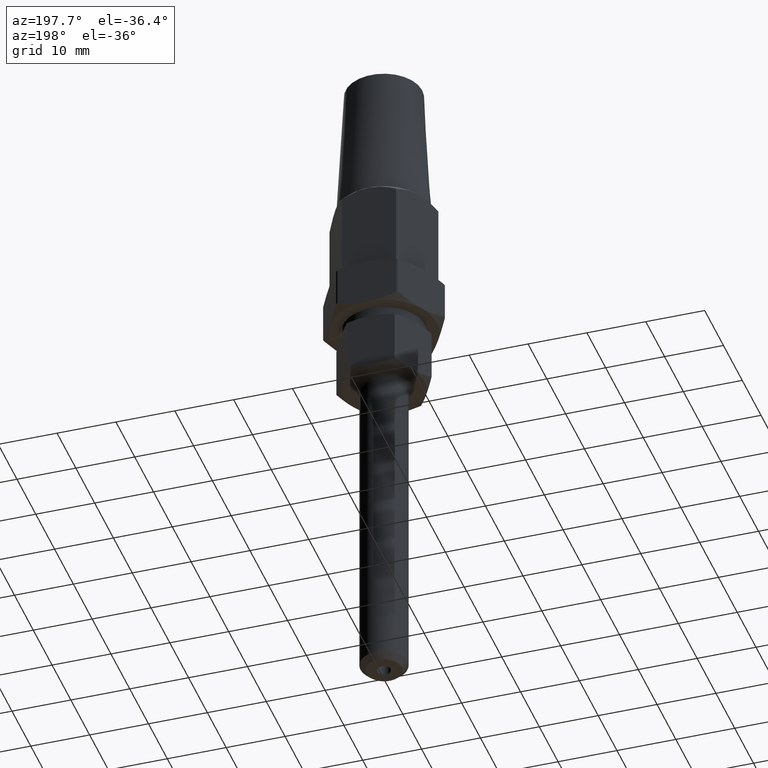
[diagram: clean part render]
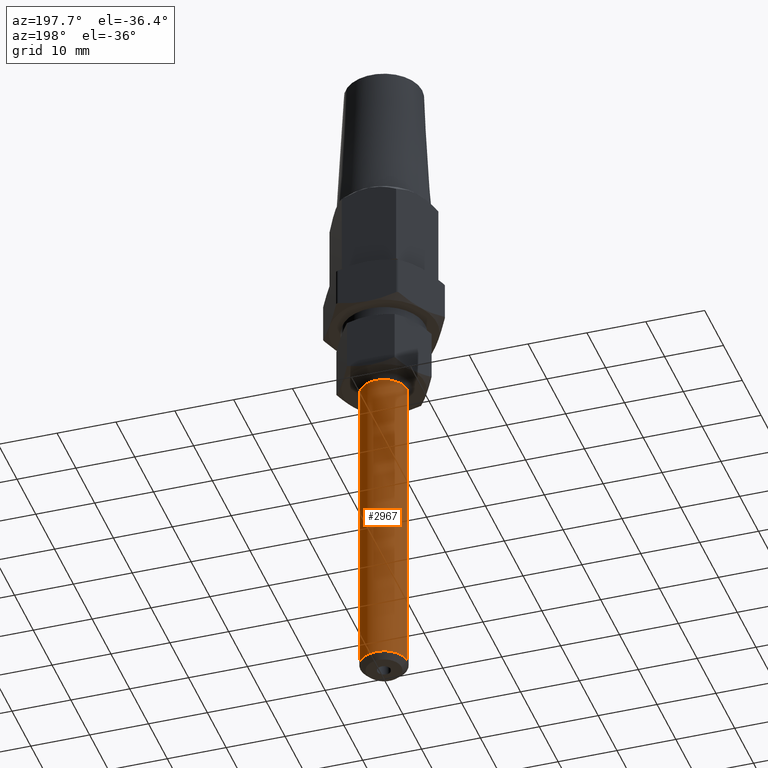
[diagram: same view with one face highlighted and labeled with its STEP entity id]
A machine part, auxiliary view. The second image highlights one B-rep face of the part: STEP entity #2967.
In plain terms, the highlighted cylindrical surface (edge-blend (fillet) strip) has radius 4 mm, axis along (0, 0, 1).
Its self-contained STEP definition (entity closure, byte-faithful):
#268 = AXIS2_PLACEMENT_3D ( 'NONE', #18266, #1942, #18636 ) ;
#529 = CARTESIAN_POINT ( 'NONE',  ( 4.000000000000000000, 0.0000000000000000000, -61.50000000000000000 ) ) ;
#992 = DIRECTION ( 'NONE',  ( -0.0000000000000000000, 0.0000000000000000000, -1.000000000000000000 ) ) ;
#1161 = CARTESIAN_POINT ( 'NONE',  ( 0.0000000000000000000, 0.0000000000000000000, -61.50000000000000000 ) ) ;
#1942 = DIRECTION ( 'NONE',  ( 0.0000000000000000000, 0.0000000000000000000, 1.000000000000000000 ) ) ;
#1992 = VERTEX_POINT ( 'NONE', #15668 ) ;
#2456 = DIRECTION ( 'NONE',  ( 1.000000000000000000, 0.0000000000000000000, 0.0000000000000000000 ) ) ;
#2533 = ORIENTED_EDGE ( 'NONE', *, *, #7494, .T. ) ;
#2967 = ADVANCED_FACE ( 'NONE', ( #17565 ), #18940, .T. ) ;
#3177 = DIRECTION ( 'NONE',  ( -0.0000000000000000000, -0.0000000000000000000, 1.000000000000000000 ) ) ;
#3934 = VERTEX_POINT ( 'NONE', #13675 ) ;
#5090 = AXIS2_PLACEMENT_3D ( 'NONE', #1161, #17427, #9978 ) ;
#5213 = CARTESIAN_POINT ( 'NONE',  ( 0.0000000000000000000, 0.0000000000000000000, -5.999999999999998200 ) ) ;
#6726 = EDGE_CURVE ( 'NONE', #3934, #16209, #7195, .T. ) ;
#7133 = CARTESIAN_POINT ( 'NONE',  ( -4.000000000000000000, 4.898587196589412800E-016, -61.50000000000000000 ) ) ;
#7177 = VECTOR ( 'NONE', #3177, 1000.000000000000000 ) ;
#7195 = CIRCLE ( 'NONE', #268, 4.000000000000000000 ) ;
#7404 = LINE ( 'NONE', #7133, #7177 ) ;
#7494 = EDGE_CURVE ( 'NONE', #16209, #18977, #7404, .T. ) ;
#8528 = CIRCLE ( 'NONE', #16983, 4.000000000000000000 ) ;
#9978 = DIRECTION ( 'NONE',  ( 1.000000000000000000, 0.0000000000000000000, 0.0000000000000000000 ) ) ;
#10630 = ORIENTED_EDGE ( 'NONE', *, *, #10951, .T. ) ;
#10951 = EDGE_CURVE ( 'NONE', #18977, #1992, #8528, .T. ) ;
#11301 = DIRECTION ( 'NONE',  ( -0.0000000000000000000, -0.0000000000000000000, 1.000000000000000000 ) ) ;
#12540 = CARTESIAN_POINT ( 'NONE',  ( -4.000000000000000000, 4.898587196589412800E-016, -60.50000000000000000 ) ) ;
#13628 = ORIENTED_EDGE ( 'NONE', *, *, #18865, .F. ) ;
#13675 = CARTESIAN_POINT ( 'NONE',  ( 4.000000000000000000, 0.0000000000000000000, -60.50000000000000000 ) ) ;
#13799 = VECTOR ( 'NONE', #11301, 1000.000000000000000 ) ;
#15668 = CARTESIAN_POINT ( 'NONE',  ( 4.000000000000000000, 0.0000000000000000000, -5.999999999999998200 ) ) ;
#15901 = LINE ( 'NONE', #529, #13799 ) ;
#15937 = ORIENTED_EDGE ( 'NONE', *, *, #6726, .T. ) ;
#16209 = VERTEX_POINT ( 'NONE', #12540 ) ;
#16515 = CARTESIAN_POINT ( 'NONE',  ( -4.000000000000000000, 4.898587196589412800E-016, -5.999999999999998200 ) ) ;
#16983 = AXIS2_PLACEMENT_3D ( 'NONE', #5213, #992, #2456 ) ;
#17427 = DIRECTION ( 'NONE',  ( -0.0000000000000000000, -0.0000000000000000000, 1.000000000000000000 ) ) ;
#17565 = FACE_OUTER_BOUND ( 'NONE', #19114, .T. ) ;
#18266 = CARTESIAN_POINT ( 'NONE',  ( 0.0000000000000000000, 0.0000000000000000000, -60.50000000000000000 ) ) ;
#18636 = DIRECTION ( 'NONE',  ( -1.000000000000000000, 0.0000000000000000000, 0.0000000000000000000 ) ) ;
#18865 = EDGE_CURVE ( 'NONE', #3934, #1992, #15901, .T. ) ;
#18940 = CYLINDRICAL_SURFACE ( 'NONE', #5090, 4.000000000000000000 ) ;
#18977 = VERTEX_POINT ( 'NONE', #16515 ) ;
#19114 = EDGE_LOOP ( 'NONE', ( #15937, #2533, #10630, #13628 ) ) ;